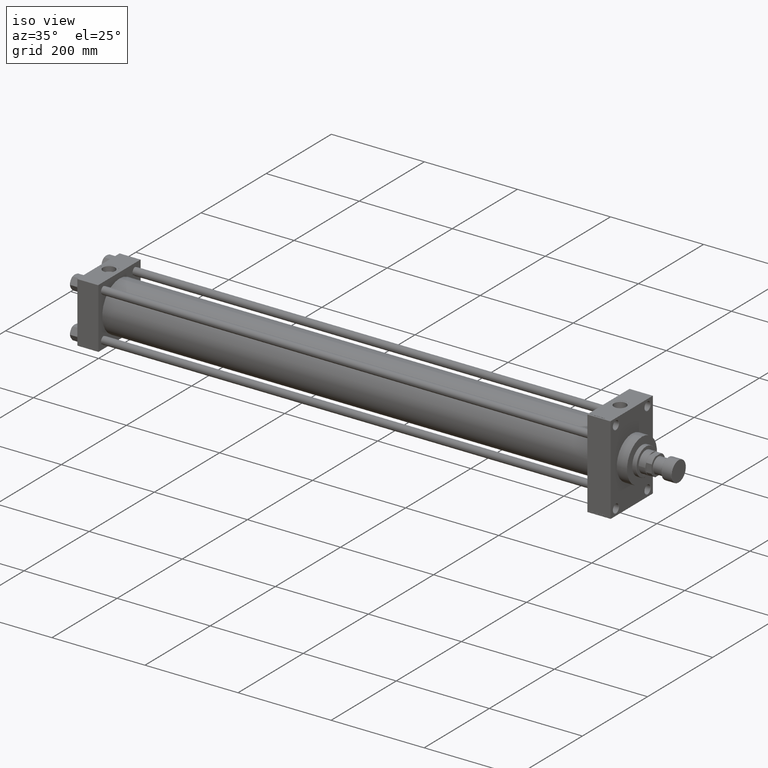
[diagram: clean part render]
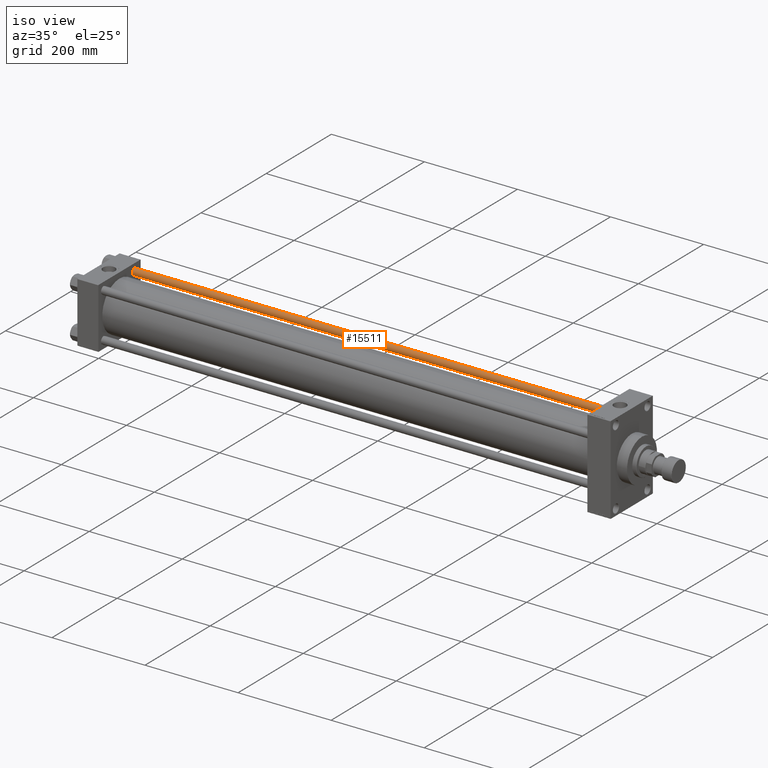
[diagram: same view with one face highlighted and labeled with its STEP entity id]
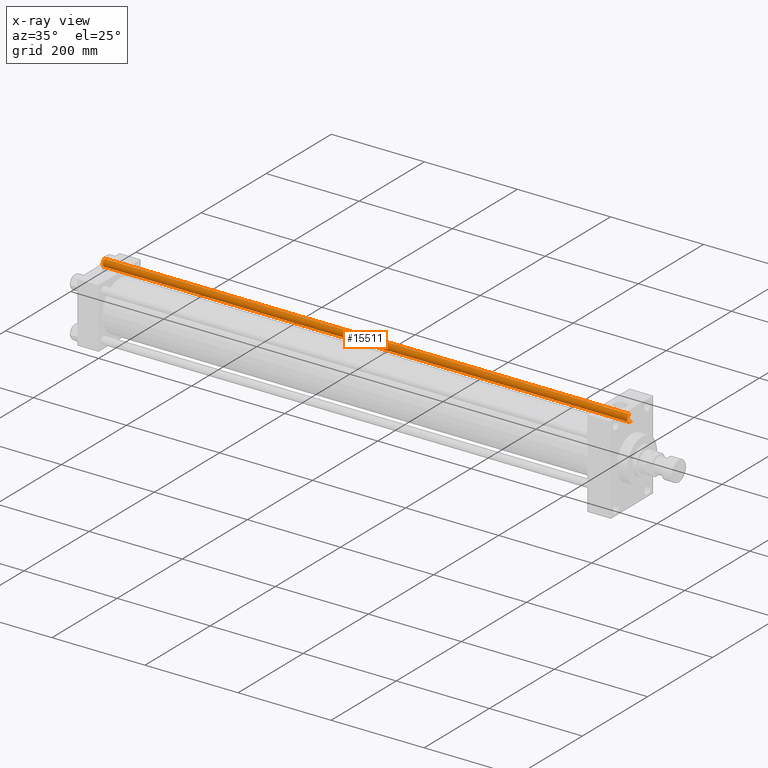
[diagram: x-ray of the same camera — body ghosted, the highlighted face saturated]
A machine part, iso view. The second image highlights one B-rep face of the part: STEP entity #15511.
The next image is the same camera in x-ray: the body ghosted, the highlighted face saturated — about 0% of this face is hidden behind the body in this view.
In plain terms, the highlighted cylindrical surface (edge-blend (fillet) strip) has radius 8 mm, axis along (-1, -0, 0).
Its self-contained STEP definition (entity closure, byte-faithful):
#2660 = VERTEX_POINT ( 'NONE', #3426 ) ;
#3138 = EDGE_CURVE ( 'NONE', #2660, #12690, #24700, .T. ) ;
#3162 = ORIENTED_EDGE ( 'NONE', *, *, #35118, .T. ) ;
#3426 = CARTESIAN_POINT ( 'NONE',  ( 8.000000000000000000, 9.797174393178825657E-16, 1128.500000000000000 ) ) ;
#3547 = DIRECTION ( 'NONE',  ( -0.000000000000000000, -0.000000000000000000, -1.000000000000000000 ) ) ;
#3936 = CARTESIAN_POINT ( 'NONE',  ( -8.000000000000000000, 0.000000000000000000, 1128.500000000000000 ) ) ;
#3986 = VECTOR ( 'NONE', #38383, 1000.000000000000000 ) ;
#4624 = CIRCLE ( 'NONE', #23249, 8.000000000000000000 ) ;
#5785 = CYLINDRICAL_SURFACE ( 'NONE', #11086, 8.000000000000000000 ) ;
#6018 = CARTESIAN_POINT ( 'NONE',  ( 0.000000000000000000, 0.000000000000000000, 1129.000000000000000 ) ) ;
#8001 = EDGE_CURVE ( 'NONE', #2660, #16231, #11322, .T. ) ;
#8224 = LINE ( 'NONE', #11879, #3986 ) ;
#11086 = AXIS2_PLACEMENT_3D ( 'NONE', #6018, #20605, #31804 ) ;
#11322 = LINE ( 'NONE', #36890, #22116 ) ;
#11879 = CARTESIAN_POINT ( 'NONE',  ( -8.000000000000000000, 0.000000000000000000, 1129.000000000000000 ) ) ;
#11907 = EDGE_CURVE ( 'NONE', #12690, #39585, #8224, .T. ) ;
#12559 = CARTESIAN_POINT ( 'NONE',  ( -8.000000000000000000, 0.000000000000000000, 0.5000000000001669775 ) ) ;
#12690 = VERTEX_POINT ( 'NONE', #3936 ) ;
#13936 = DIRECTION ( 'NONE',  ( 0.000000000000000000, 0.000000000000000000, -1.000000000000000000 ) ) ;
#15511 = ADVANCED_FACE ( 'NONE', ( #20362 ), #5785, .T. ) ;
#16231 = VERTEX_POINT ( 'NONE', #40887 ) ;
#17412 = ORIENTED_EDGE ( 'NONE', *, *, #11907, .T. ) ;
#18313 = CARTESIAN_POINT ( 'NONE',  ( 0.000000000000000000, 0.000000000000000000, 1128.500000000000000 ) ) ;
#19720 = CARTESIAN_POINT ( 'NONE',  ( 0.000000000000000000, 0.000000000000000000, 0.5000000000001669775 ) ) ;
#20362 = FACE_OUTER_BOUND ( 'NONE', #29838, .T. ) ;
#20605 = DIRECTION ( 'NONE',  ( -0.000000000000000000, -0.000000000000000000, -1.000000000000000000 ) ) ;
#22116 = VECTOR ( 'NONE', #3547, 1000.000000000000000 ) ;
#23249 = AXIS2_PLACEMENT_3D ( 'NONE', #19720, #27948, #42112 ) ;
#24700 = CIRCLE ( 'NONE', #47264, 8.000000000000000000 ) ;
#25356 = DIRECTION ( 'NONE',  ( 1.000000000000000000, 0.000000000000000000, 0.000000000000000000 ) ) ;
#26021 = ORIENTED_EDGE ( 'NONE', *, *, #8001, .F. ) ;
#27948 = DIRECTION ( 'NONE',  ( -0.000000000000000000, -0.000000000000000000, 1.000000000000000000 ) ) ;
#29838 = EDGE_LOOP ( 'NONE', ( #26021, #35489, #17412, #3162 ) ) ;
#31804 = DIRECTION ( 'NONE',  ( -1.000000000000000000, 0.000000000000000000, 0.000000000000000000 ) ) ;
#35118 = EDGE_CURVE ( 'NONE', #39585, #16231, #4624, .T. ) ;
#35489 = ORIENTED_EDGE ( 'NONE', *, *, #3138, .T. ) ;
#36890 = CARTESIAN_POINT ( 'NONE',  ( 8.000000000000000000, 9.797174393178825657E-16, 1129.000000000000000 ) ) ;
#38383 = DIRECTION ( 'NONE',  ( -0.000000000000000000, -0.000000000000000000, -1.000000000000000000 ) ) ;
#39585 = VERTEX_POINT ( 'NONE', #12559 ) ;
#40887 = CARTESIAN_POINT ( 'NONE',  ( 8.000000000000000000, 9.797174393178825657E-16, 0.5000000000001669775 ) ) ;
#42112 = DIRECTION ( 'NONE',  ( 1.000000000000000000, 0.000000000000000000, 0.000000000000000000 ) ) ;
#47264 = AXIS2_PLACEMENT_3D ( 'NONE', #18313, #13936, #25356 ) ;